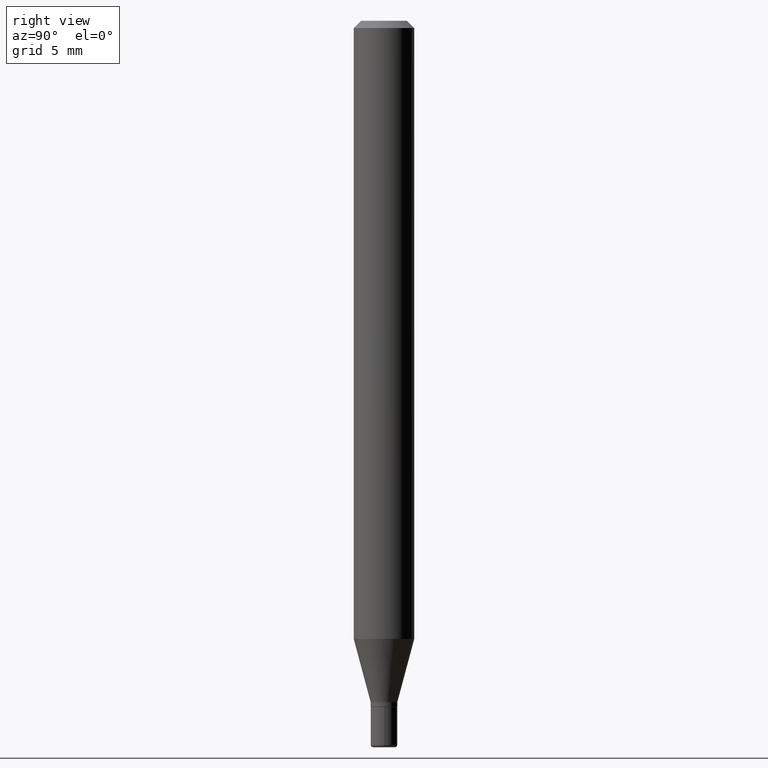
[diagram: clean part render]
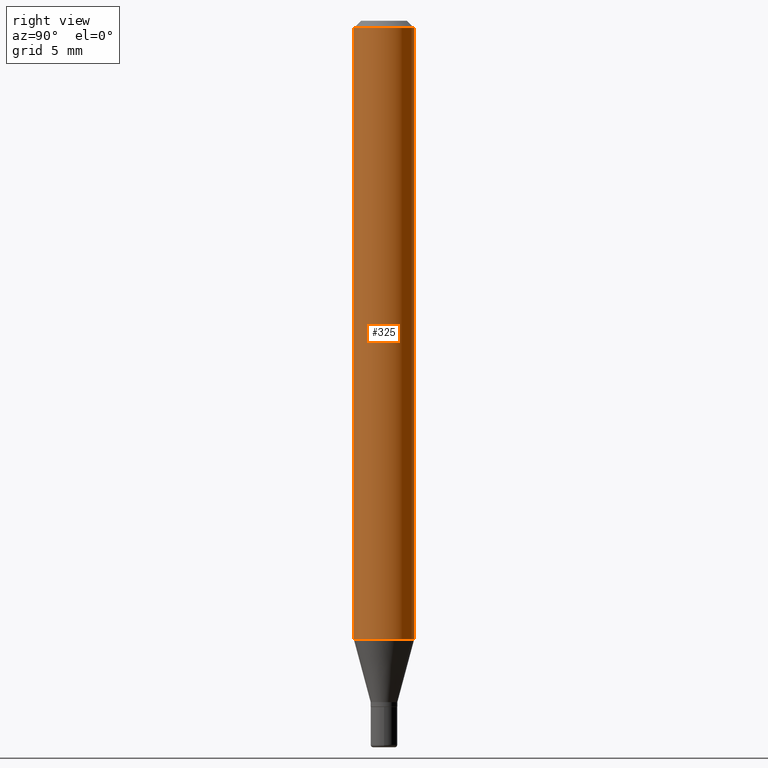
[diagram: same view with one face highlighted and labeled with its STEP entity id]
A machine part, right view. The second image highlights one B-rep face of the part: STEP entity #325.
In plain terms, the highlighted cylindrical surface (edge-blend (fillet) strip) has radius 1.5875 mm, axis along (-0, 0, 1).
Its self-contained STEP definition (entity closure, byte-faithful):
#1 = DIRECTION ( 'NONE',  ( -6.982962677686265922E-15, -1.000000000000000000, 3.491536060866079986E-15 ) ) ;
#11 = CIRCLE ( 'NONE', #285, 0.06250000000000000000 ) ;
#15 = ORIENTED_EDGE ( 'NONE', *, *, #238, .F. ) ;
#25 = VERTEX_POINT ( 'NONE', #324 ) ;
#38 = DIRECTION ( 'NONE',  ( -6.982962677686265922E-15, -1.000000000000000000, 3.483106191921935554E-15 ) ) ;
#43 = EDGE_CURVE ( 'NONE', #502, #195, #11, .T. ) ;
#67 = VECTOR ( 'NONE', #208, 39.37007874015748143 ) ;
#71 = DIRECTION ( 'NONE',  ( -6.982962677686265922E-15, -1.000000000000000000, 4.370956789862821150E-15 ) ) ;
#82 = CYLINDRICAL_SURFACE ( 'NONE', #94, 0.06250000000000000000 ) ;
#94 = AXIS2_PLACEMENT_3D ( 'NONE', #359, #356, #1 ) ;
#99 = CARTESIAN_POINT ( 'NONE',  ( -4.364351673553916201E-16, -0.06250000000000000000, 2.182210038041299992E-16 ) ) ;
#101 = VECTOR ( 'NONE', #267, 39.37007874015748143 ) ;
#147 = CARTESIAN_POINT ( 'NONE',  ( 3.121294352947271475E-29, -4.456520588492188599E-15, -1.276378221735090079 ) ) ;
#155 = ORIENTED_EDGE ( 'NONE', *, *, #316, .T. ) ;
#195 = VERTEX_POINT ( 'NONE', #418 ) ;
#208 = DIRECTION ( 'NONE',  ( -2.445430594000756604E-29, 3.491536060866079986E-15, 1.000000000000000000 ) ) ;
#232 = ORIENTED_EDGE ( 'NONE', *, *, #293, .T. ) ;
#238 = EDGE_CURVE ( 'NONE', #266, #502, #460, .T. ) ;
#251 = CARTESIAN_POINT ( 'NONE',  ( 3.668145891001062423E-31, -5.237304091299016762E-17, -0.01499999999999970281 ) ) ;
#252 = CARTESIAN_POINT ( 'NONE',  ( -4.364351673553912750E-16, -0.06250000000000005551, -0.01499999999999948597 ) ) ;
#266 = VERTEX_POINT ( 'NONE', #273 ) ;
#267 = DIRECTION ( 'NONE',  ( -2.445430594000756604E-29, 3.491536060866079986E-15, 1.000000000000000000 ) ) ;
#273 = CARTESIAN_POINT ( 'NONE',  ( -4.364351673553605587E-16, -0.06250000000000449640, -1.276378221735089857 ) ) ;
#282 = LINE ( 'NONE', #443, #67 ) ;
#285 = AXIS2_PLACEMENT_3D ( 'NONE', #251, #446, #38 ) ;
#293 = EDGE_CURVE ( 'NONE', #25, #195, #282, .T. ) ;
#316 = EDGE_CURVE ( 'NONE', #266, #25, #504, .T. ) ;
#324 = CARTESIAN_POINT ( 'NONE',  ( 4.440892098500935790E-16, 0.06249999999999551747, -1.276378221735090301 ) ) ;
#325 = ADVANCED_FACE ( 'NONE', ( #513 ), #82, .T. ) ;
#356 = DIRECTION ( 'NONE',  ( -2.445430594000756604E-29, 3.491536060866079986E-15, 1.000000000000000000 ) ) ;
#359 = CARTESIAN_POINT ( 'NONE',  ( 0.000000000000000000, 0.000000000000000000, 0.000000000000000000 ) ) ;
#378 = EDGE_LOOP ( 'NONE', ( #155, #232, #508, #15 ) ) ;
#390 = DIRECTION ( 'NONE',  ( -2.445430594000756604E-29, 3.491536060866079986E-15, 1.000000000000000000 ) ) ;
#398 = AXIS2_PLACEMENT_3D ( 'NONE', #147, #390, #71 ) ;
#418 = CARTESIAN_POINT ( 'NONE',  ( 4.440892098500940720E-16, 0.06249999999999995143, -0.01499999999999992138 ) ) ;
#443 = CARTESIAN_POINT ( 'NONE',  ( 4.440892098500625669E-16, 0.06250000000000000000, -2.182210038041299992E-16 ) ) ;
#446 = DIRECTION ( 'NONE',  ( -2.445430594000756604E-29, 3.491536060866079986E-15, 1.000000000000000000 ) ) ;
#460 = LINE ( 'NONE', #99, #101 ) ;
#502 = VERTEX_POINT ( 'NONE', #252 ) ;
#504 = CIRCLE ( 'NONE', #398, 0.06250000000000000000 ) ;
#508 = ORIENTED_EDGE ( 'NONE', *, *, #43, .F. ) ;
#513 = FACE_OUTER_BOUND ( 'NONE', #378, .T. ) ;